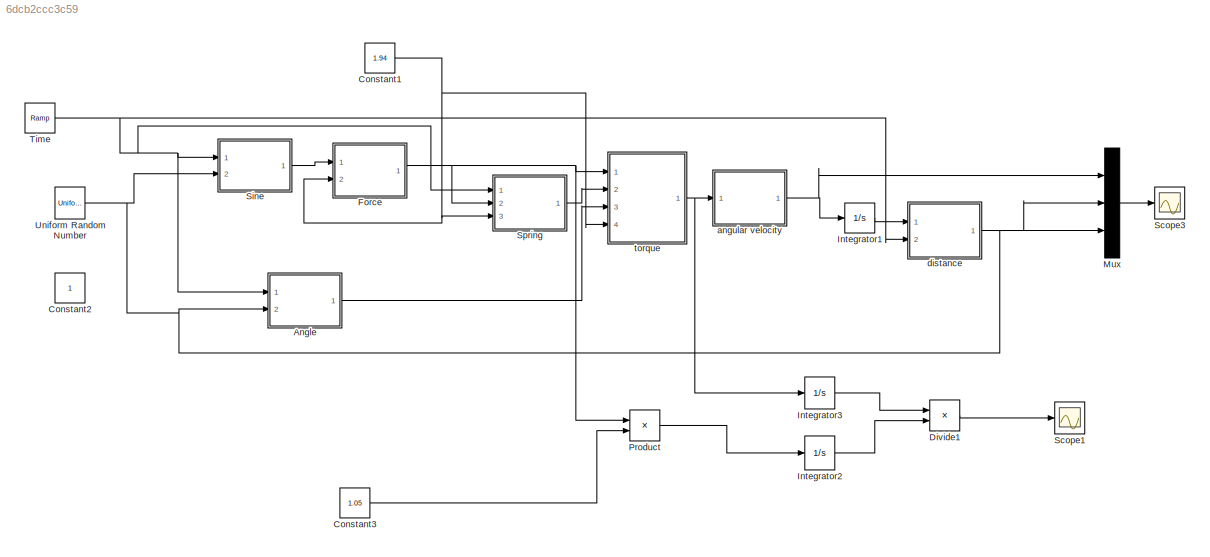
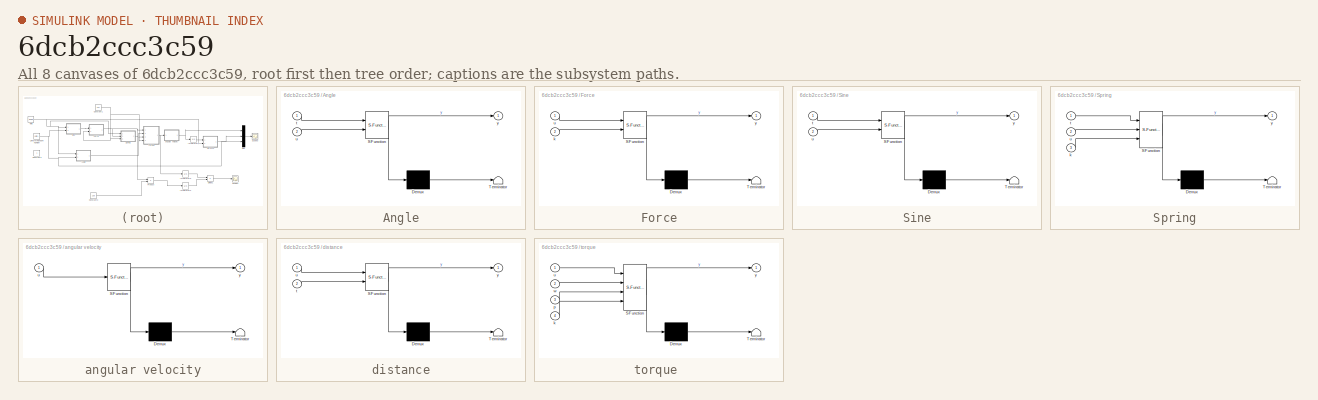
[diagram: thumbnail index - all 8 canvases of the model, root first then tree order]
MODEL slx_6dcb2ccc3c59
KIND model
BLOCK [SubSystem] Angle
  ErrorFcn = Stateflow.Translate.translate
  FunctionWithSeparateData = off
  MaskHideContents = off
  MinAlgLoopOccurrences = off
  Opaque = off
  PermitHierarchicalResolution = ExplicitOnly
  Ports = [2, 1]
  PropExecContextOutsideSubsystem = off
  RTWSystemCode = Auto
  RequestExecContextInheritance = off
  SFBlockType = MATLAB Function
  TreatAsAtomicUnit = on
BLOCK [Demux] Angle/ Demux 
  Outputs = 1
  Ports = [1, 1]
BLOCK [S-Function] Angle/ SFunction 
  EnableBusSupport = on
  FunctionName = sf_sfun
  PortCounts = [2 2]
  Ports = [2, 2]
  Tag = Stateflow S-Function project_madeFunctions2 6
BLOCK [Terminator] Angle/ Terminator 
BLOCK [Inport] Angle/t
  IconDisplay = Port number
BLOCK [Inport] Angle/u
  IconDisplay = Port number
  Port = 2
BLOCK [Outport] Angle/y
  IconDisplay = Port number
BLOCK [Constant] Constant1
  Value = 1.94
BLOCK [Constant] Constant2
BLOCK [Constant] Constant3
  Value = 1.05
BLOCK [Product] Divide1
  InputSameDT = off
  Inputs = */
  OutDataTypeStr = Inherit: Inherit via internal rule
  Ports = [2, 1]
  RndMeth = Floor
  SaturateOnIntegerOverflow = off
BLOCK [SubSystem] Force
  ErrorFcn = Stateflow.Translate.translate
  FunctionWithSeparateData = off
  MaskHideContents = off
  MinAlgLoopOccurrences = off
  Opaque = off
  PermitHierarchicalResolution = ExplicitOnly
  Ports = [2, 1]
  PropExecContextOutsideSubsystem = off
  RTWSystemCode = Auto
  RequestExecContextInheritance = off
  SFBlockType = MATLAB Function
  TreatAsAtomicUnit = on
BLOCK [Demux] Force/ Demux 
  Outputs = 1
  Ports = [1, 1]
BLOCK [S-Function] Force/ SFunction 
  EnableBusSupport = on
  FunctionName = sf_sfun
  PortCounts = [2 2]
  Ports = [2, 2]
  Tag = Stateflow S-Function project_madeFunctions2 1
BLOCK [Terminator] Force/ Terminator 
BLOCK [Inport] Force/k
  IconDisplay = Port number
  Port = 2
BLOCK [Inport] Force/u
  IconDisplay = Port number
BLOCK [Outport] Force/y
  IconDisplay = Port number
BLOCK [Integrator] Integrator1
  Ports = [1, 1]
BLOCK [Integrator] Integrator2
  Ports = [1, 1]
BLOCK [Integrator] Integrator3
  Ports = [1, 1]
BLOCK [Mux] Mux
  DisplayOption = bar
  Inputs = 3
  Ports = [3, 1]
BLOCK [Product] Product
  InputSameDT = off
  OutDataTypeStr = Inherit: Inherit via internal rule
  Ports = [2, 1]
  RndMeth = Floor
  SaturateOnIntegerOverflow = off
BLOCK [Scope] Scope1
  DataFormat = StructureWithTime
  Floating = off
  NumInputPorts = 1
  Ports = [1]
  SampleTime = 0
  ShowLegends = off
  YMax = 17
  YMin = -1
BLOCK [Scope] Scope3
  DataFormat = StructureWithTime
  Floating = off
  NumInputPorts = 1
  Ports = [1]
  SampleTime = 0
  SaveName = ScopeData3
  ShowLegends = on
  YMax = 17
  YMin = -1
BLOCK [SubSystem] Sine
  ErrorFcn = Stateflow.Translate.translate
  FunctionWithSeparateData = off
  MaskHideContents = off
  MinAlgLoopOccurrences = off
  Opaque = off
  PermitHierarchicalResolution = ExplicitOnly
  Ports = [2, 1]
  PropExecContextOutsideSubsystem = off
  RTWSystemCode = Auto
  RequestExecContextInheritance = off
  SFBlockType = MATLAB Function
  TreatAsAtomicUnit = on
BLOCK [Demux] Sine/ Demux 
  Outputs = 1
  Ports = [1, 1]
BLOCK [S-Function] Sine/ SFunction 
  EnableBusSupport = on
  FunctionName = sf_sfun
  PortCounts = [2 2]
  Ports = [2, 2]
  Tag = Stateflow S-Function project_madeFunctions2 2
BLOCK [Terminator] Sine/ Terminator 
BLOCK [Inport] Sine/t
  IconDisplay = Port number
BLOCK [Inport] Sine/u
  IconDisplay = Port number
  Port = 2
BLOCK [Outport] Sine/y
  IconDisplay = Port number
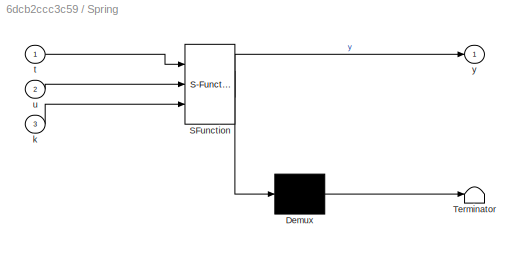
BLOCK [SubSystem] Spring
  ErrorFcn = Stateflow.Translate.translate
  FunctionWithSeparateData = off
  MaskHideContents = off
  MinAlgLoopOccurrences = off
  Opaque = off
  PermitHierarchicalResolution = ExplicitOnly
  Ports = [3, 1]
  PropExecContextOutsideSubsystem = off
  RTWSystemCode = Auto
  RequestExecContextInheritance = off
  SFBlockType = MATLAB Function
  TreatAsAtomicUnit = on
BLOCK [Demux] Spring/ Demux 
  Outputs = 1
  Ports = [1, 1]
BLOCK [S-Function] Spring/ SFunction 
  EnableBusSupport = on
  FunctionName = sf_sfun
  PortCounts = [3 2]
  Ports = [3, 2]
  Tag = Stateflow S-Function project_madeFunctions2 4
BLOCK [Terminator] Spring/ Terminator 
BLOCK [Inport] Spring/k
  IconDisplay = Port number
  Port = 3
BLOCK [Inport] Spring/t
  IconDisplay = Port number
BLOCK [Inport] Spring/u
  IconDisplay = Port number
  Port = 2
BLOCK [Outport] Spring/y
  IconDisplay = Port number
BLOCK [Reference] Time  REF=simulink/Sources/Ramp
  Ports = [0, 1]
  SourceBlock = simulink/Sources/Ramp
  SourceType = Ramp
  VectorParams1D = on
  X0 = .01
  slope = 1
  start = 0
BLOCK [UniformRandomNumber] Uniform Random Number
  Maximum = 2
  Minimum = 0
  SampleTime = 2
  Seed = 1
BLOCK [SubSystem] angular velocity
  ErrorFcn = Stateflow.Translate.translate
  FunctionWithSeparateData = off
  MaskHideContents = off
  MinAlgLoopOccurrences = off
  Opaque = off
  PermitHierarchicalResolution = ExplicitOnly
  Ports = [1, 1]
  PropExecContextOutsideSubsystem = off
  RTWSystemCode = Auto
  RequestExecContextInheritance = off
  SFBlockType = MATLAB Function
  TreatAsAtomicUnit = on
BLOCK [Demux] angular velocity/ Demux 
  Outputs = 1
  Ports = [1, 1]
BLOCK [S-Function] angular velocity/ SFunction 
  EnableBusSupport = on
  FunctionName = sf_sfun
  PortCounts = [1 2]
  Ports = [1, 2]
  Tag = Stateflow S-Function project_madeFunctions2 5
BLOCK [Terminator] angular velocity/ Terminator 
BLOCK [Inport] angular velocity/u
  IconDisplay = Port number
BLOCK [Outport] angular velocity/y
  IconDisplay = Port number
BLOCK [SubSystem] distance
  ErrorFcn = Stateflow.Translate.translate
  FunctionWithSeparateData = off
  MaskHideContents = off
  MinAlgLoopOccurrences = off
  Opaque = off
  PermitHierarchicalResolution = ExplicitOnly
  Ports = [2, 1]
  PropExecContextOutsideSubsystem = off
  RTWSystemCode = Auto
  RequestExecContextInheritance = off
  SFBlockType = MATLAB Function
  TreatAsAtomicUnit = on
BLOCK [Demux] distance/ Demux 
  Outputs = 1
  Ports = [1, 1]
BLOCK [S-Function] distance/ SFunction 
  EnableBusSupport = on
  FunctionName = sf_sfun
  PortCounts = [2 2]
  Ports = [2, 2]
  Tag = Stateflow S-Function project_madeFunctions2 8
BLOCK [Terminator] distance/ Terminator 
BLOCK [Inport] distance/t
  IconDisplay = Port number
  Port = 2
BLOCK [Inport] distance/u
  IconDisplay = Port number
BLOCK [Outport] distance/y
  IconDisplay = Port number
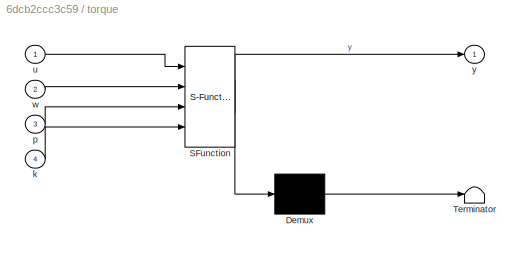
BLOCK [SubSystem] torque 
  ErrorFcn = Stateflow.Translate.translate
  FunctionWithSeparateData = off
  MaskHideContents = off
  MinAlgLoopOccurrences = off
  Opaque = off
  PermitHierarchicalResolution = ExplicitOnly
  Ports = [4, 1]
  PropExecContextOutsideSubsystem = off
  RTWSystemCode = Auto
  RequestExecContextInheritance = off
  SFBlockType = MATLAB Function
  TreatAsAtomicUnit = on
BLOCK [Demux] torque / Demux 
  Outputs = 1
  Ports = [1, 1]
BLOCK [S-Function] torque / SFunction 
  EnableBusSupport = on
  FunctionName = sf_sfun
  PortCounts = [4 2]
  Ports = [4, 2]
  Tag = Stateflow S-Function project_madeFunctions2 3
BLOCK [Terminator] torque / Terminator 
BLOCK [Inport] torque /k
  IconDisplay = Port number
  Port = 4
BLOCK [Inport] torque /p
  IconDisplay = Port number
  Port = 3
BLOCK [Inport] torque /u
  IconDisplay = Port number
BLOCK [Inport] torque /w
  IconDisplay = Port number
  Port = 2
BLOCK [Outport] torque /y
  IconDisplay = Port number
LINE Angle:1 -> torque :3
NET Constant1:1 -> Force:2, Spring:3, torque :4
LINE Constant3:1 -> Product:2
LINE Divide1:1 -> Scope1:1
NET Force:1 -> Product:1, Spring:2, torque :1
LINE Integrator1:1 -> distance:1
LINE Integrator2:1 -> Divide1:2
LINE Integrator3:1 -> Divide1:1
LINE Mux:1 -> Scope3:1
LINE Product:1 -> Integrator2:1
LINE Sine:1 -> Force:1
LINE Spring:1 -> torque :2
NET Time:1 -> Angle:1, Sine:1, Spring:1, distance:2
NET Uniform Random Number:1 -> Angle:2, Mux:3, Sine:2
NET angular velocity:1 -> Integrator1:1, Mux:1
LINE distance:1 -> Mux:2
NET torque :1 -> Integrator3:1, angular velocity:1
note: NET lines group one-source signal fan-out (src -> all destinations, sorted); 1:1 wires keep LINE
